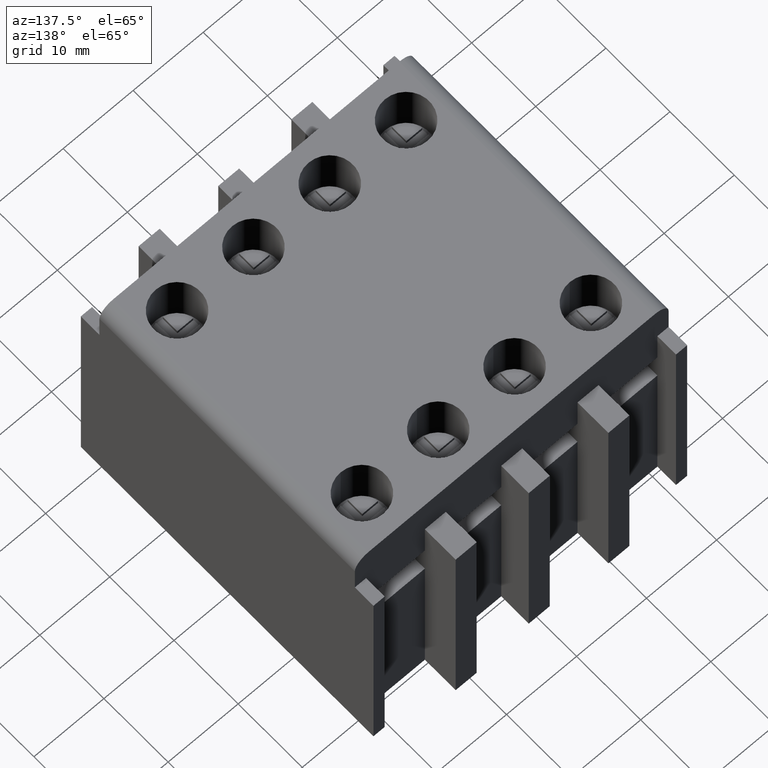
[diagram: clean part render]
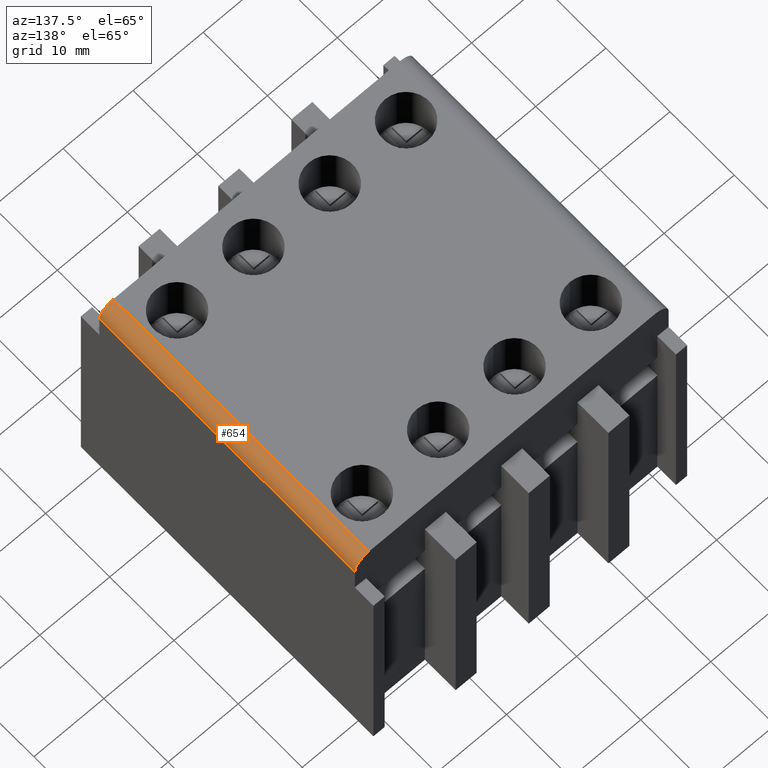
[diagram: same view with one face highlighted and labeled with its STEP entity id]
A machine part, auxiliary view. The second image highlights one B-rep face of the part: STEP entity #654.
In plain terms, the highlighted cylindrical surface (edge-blend (fillet) strip) has radius 2 mm, axis along (0, 1, 0).
Its self-contained STEP definition (entity closure, byte-faithful):
#122=CYLINDRICAL_SURFACE('',#4874,2.);
#309=FACE_OUTER_BOUND('',#1274,.T.);
#347=CIRCLE('',#4582,2.);
#397=CIRCLE('',#4737,2.);
#654=ADVANCED_FACE('',(#309),#122,.T.);
#1274=EDGE_LOOP('',(#2491,#2492,#2493,#2494));
#2491=ORIENTED_EDGE('',*,*,#3078,.F.);
#2492=ORIENTED_EDGE('',*,*,#3100,.F.);
#2493=ORIENTED_EDGE('',*,*,#3320,.F.);
#2494=ORIENTED_EDGE('',*,*,#3052,.F.);
#2630=VERTEX_POINT('',#6353);
#2632=VERTEX_POINT('',#6357);
#2652=VERTEX_POINT('',#6405);
#2666=VERTEX_POINT('',#6449);
#3052=EDGE_CURVE('',#2632,#2630,#3632,.T.);
#3078=EDGE_CURVE('',#2652,#2632,#347,.T.);
#3100=EDGE_CURVE('',#2666,#2652,#3672,.T.);
#3320=EDGE_CURVE('',#2630,#2666,#397,.T.);
#3632=LINE('',#6358,#4134);
#3672=LINE('',#6450,#4174);
#4134=VECTOR('',#5070,1.);
#4174=VECTOR('',#5146,1.);
#4582=AXIS2_PLACEMENT_3D('',#6406,#5107,#5108);
#4737=AXIS2_PLACEMENT_3D('',#6911,#5609,#5610);
#4874=AXIS2_PLACEMENT_3D('',#7336,#6067,#6068);
#5070=DIRECTION('',(0.,1.,0.));
#5107=DIRECTION('',(0.,-1.,0.));
#5108=DIRECTION('',(0.,0.,1.));
#5146=DIRECTION('',(0.,-1.,0.));
#5609=DIRECTION('',(0.,1.,-5.52326749582304E-014));
#5610=DIRECTION('',(0.,-5.55111512312578E-014,-1.));
#6067=DIRECTION('',(0.,1.,0.));
#6068=DIRECTION('',(0.,0.,1.));
#6353=CARTESIAN_POINT('',(20.4,19.9000000000062,113.999999999999));
#6357=CARTESIAN_POINT('',(20.4,-19.9,114.));
#6358=CARTESIAN_POINT('',(20.4,-19.9,114.));
#6405=CARTESIAN_POINT('',(22.4,-19.9,112.));
#6406=CARTESIAN_POINT('',(20.4,-19.9,112.));
#6449=CARTESIAN_POINT('',(22.4,19.9000000000061,112.));
#6450=CARTESIAN_POINT('',(22.4,1.07016788684984E-012,112.));
#6911=CARTESIAN_POINT('',(20.4,19.9000000000061,112.));
#7336=CARTESIAN_POINT('',(20.4,-19.9,112.));